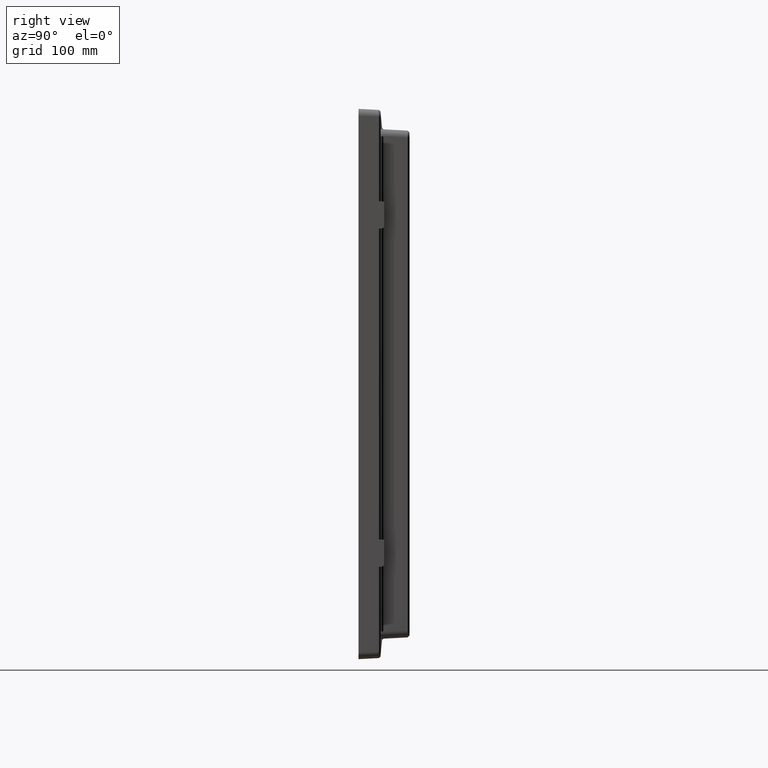
[diagram: clean part render]
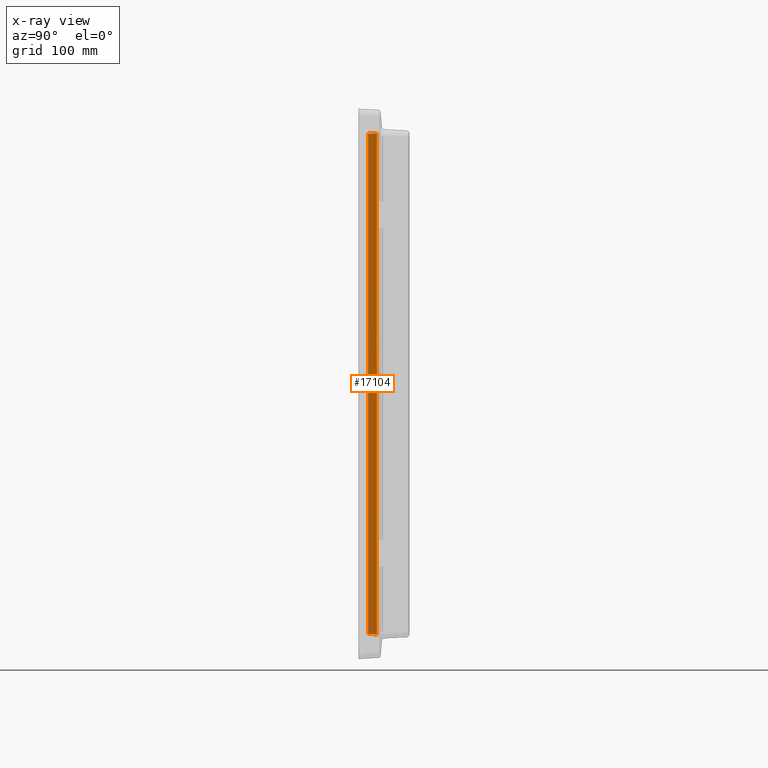
[diagram: x-ray — body ghosted, one internal face saturated and labeled with its STEP entity id]
A machine part, right view, then the same camera in x-ray: the body is ghosted and one INTERNAL B-rep face — a face not visible from any outside direction — is saturated and labeled: STEP entity #17104.
In plain terms, the highlighted planar face has unit normal (-0.9986, -0.0523, 0).
Its self-contained STEP definition (entity closure, byte-faithful):
#168 = VECTOR ( 'NONE', #18140, 1000.000000000000000 ) ;
#290 = CARTESIAN_POINT ( 'NONE',  ( -188.9360347717272100, 6.994240738173410900, 30.05746688267454300 ) ) ;
#407 = B_SPLINE_CURVE_WITH_KNOTS ( 'NONE', 3,
 ( #8299, #22625, #15486, #17966, #5932, #1495, #20226 ),
 .UNSPECIFIED., .F., .F.,
 ( 4, 3, 4 ),
 ( 1.381530824795276200E-015, 0.0001002663549810742900, 0.0002005327818035707900 ),
 .UNSPECIFIED. ) ;
#436 = CARTESIAN_POINT ( 'NONE',  ( -188.9412732507934700, 7.094196820046433600, 31.81801596154923600 ) ) ;
#547 = CARTESIAN_POINT ( 'NONE',  ( -188.9447656382476700, 7.160835542470318100, 40.60455568006824500 ) ) ;
#589 = CARTESIAN_POINT ( 'NONE',  ( -188.9412732516308900, 7.094196835995595600, 34.85100105787397200 ) ) ;
#714 = LINE ( 'NONE', #10707, #5144 ) ;
#754 = CARTESIAN_POINT ( 'NONE',  ( -188.9342884750756800, 6.960919359609834000, 31.81813502846756600 ) ) ;
#858 = CARTESIAN_POINT ( 'NONE',  ( -188.9430194445739900, 7.127516182252463800, 31.81798241460633000 ) ) ;
#946 = CARTESIAN_POINT ( 'NONE',  ( -188.9447656382478700, 7.160835542470376700, 34.39335980948213500 ) ) ;
#974 = DIRECTION ( 'NONE',  ( -0.0000000000000000000, -0.0000000000000000000, 1.000000000000000000 ) ) ;
#982 = CARTESIAN_POINT ( 'NONE',  ( -188.9447656382476500, 7.160835542470413100, 37.98387790205048700 ) ) ;
#1029 = DIRECTION ( 'NONE',  ( -0.0000000000000000000, -0.0000000000000000000, 1.000000000000000000 ) ) ;
#1033 = VECTOR ( 'NONE', #20879, 999.9999999999998900 ) ;
#1052 = CARTESIAN_POINT ( 'NONE',  ( -188.9412734063401200, 7.094199788097673000, 34.39768193111741800 ) ) ;
#1069 = VERTEX_POINT ( 'NONE', #3875 ) ;
#1110 = CARTESIAN_POINT ( 'NONE',  ( -188.9395271882688100, 7.060879962393640200, 40.61045335710176800 ) ) ;
#1124 = CARTESIAN_POINT ( 'NONE',  ( -188.9447656382476500, 7.160835542470518800, 30.06749384362204900 ) ) ;
#1332 = CARTESIAN_POINT ( 'NONE',  ( -188.9447656382476700, 7.160835542470265700, 32.60311402832401500 ) ) ;
#1404 = CARTESIAN_POINT ( 'NONE',  ( -188.9395270562787600, 7.060877443803098800, 38.87541461778662500 ) ) ;
#1489 = ORIENTED_EDGE ( 'NONE', *, *, #17192, .T. ) ;
#1495 = CARTESIAN_POINT ( 'NONE',  ( -188.9360347536244800, 6.994240339571170800, 31.38357291097685600 ) ) ;
#1559 = CARTESIAN_POINT ( 'NONE',  ( -188.9342884750756800, 6.960919359609834000, 31.81813502846756600 ) ) ;
#1705 = CARTESIAN_POINT ( 'NONE',  ( -188.9412733944194800, 7.094199560638514900, 37.51600469653773500 ) ) ;
#1708 = CARTESIAN_POINT ( 'NONE',  ( -188.9447656382476500, 7.160835542470413100, 204.9999999999998600 ) ) ;
#1756 = CARTESIAN_POINT ( 'NONE',  ( -188.9342884750609500, 6.960919359611182200, 41.04890425922975800 ) ) ;
#1820 = CARTESIAN_POINT ( 'NONE',  ( -188.9342884750612400, 6.960919359611346600, 29.64475626176432900 ) ) ;
#2027 = VERTEX_POINT ( 'NONE', #15271 ) ;
#2085 = VERTEX_POINT ( 'NONE', #10906 ) ;
#2118 = VECTOR ( 'NONE', #8249, 1000.000000000000000 ) ;
#2233 = VECTOR ( 'NONE', #974, 1000.000000000000000 ) ;
#2295 = VERTEX_POINT ( 'NONE', #14212 ) ;
#2356 = ORIENTED_EDGE ( 'NONE', *, *, #6102, .F. ) ;
#2473 = B_SPLINE_CURVE_WITH_KNOTS ( 'NONE', 3,
 ( #30123, #6228, #22814, #8589, #20617, #6332, #27587 ),
 .UNSPECIFIED., .F., .F.,
 ( 4, 3, 4 ),
 ( 0.0000000000000000000, 0.0001003025077287998700, 0.0002006050907348608600 ),
 .UNSPECIFIED. ) ;
#2476 = CARTESIAN_POINT ( 'NONE',  ( -188.9342884750619800, 6.960919359624879700, 204.9999999999992600 ) ) ;
#2489 = EDGE_CURVE ( 'NONE', #29928, #13372, #5824, .T. ) ;
#2545 = ORIENTED_EDGE ( 'NONE', *, *, #5420, .F. ) ;
#2663 = EDGE_CURVE ( 'NONE', #19506, #17422, #20660, .T. ) ;
#2674 = VERTEX_POINT ( 'NONE', #1559 ) ;
#2727 = CARTESIAN_POINT ( 'NONE',  ( -188.9447656382630500, 7.160835542468878300, 41.04871591058356000 ) ) ;
#2815 = CARTESIAN_POINT ( 'NONE',  ( -188.9342884750619800, 6.960919359624879700, 204.9999999999992600 ) ) ;
#2822 = CARTESIAN_POINT ( 'NONE',  ( -188.9360347717271800, 6.994240738172631900, 39.28823611344381600 ) ) ;
#2874 = CARTESIAN_POINT ( 'NONE',  ( -188.9447656382478700, 7.160835542470376700, 34.39335980948213500 ) ) ;
#2939 = ORIENTED_EDGE ( 'NONE', *, *, #16165, .F. ) ;
#2954 = CARTESIAN_POINT ( 'NONE',  ( -188.9395270576718200, 7.060877470405913800, 37.98422099609011600 ) ) ;
#3048 = B_SPLINE_CURVE_WITH_KNOTS ( 'NONE', 3,
 ( #17018, #2822, #24278, #19385, #5178, #5073, #12128 ),
 .UNSPECIFIED., .F., .F.,
 ( 4, 3, 4 ),
 ( 5.177061131343927000E-013, 0.0001002746366838406300, 0.0002005493798680574000 ),
 .UNSPECIFIED. ) ;
#3081 = CARTESIAN_POINT ( 'NONE',  ( -188.9412732509200600, 7.094196822429702300, 32.60304927673364300 ) ) ;
#3139 = CARTESIAN_POINT ( 'NONE',  ( -188.9377808630565000, 7.027558092271134700, 31.81807872828775500 ) ) ;
#3148 = VERTEX_POINT ( 'NONE', #19202 ) ;
#3339 = LINE ( 'NONE', #13987, #25243 ) ;
#3440 = VERTEX_POINT ( 'NONE', #21391 ) ;
#3469 = LINE ( 'NONE', #17495, #17916 ) ;
#3498 = LINE ( 'NONE', #17349, #21625 ) ;
#3694 = VECTOR ( 'NONE', #12233, 1000.000000000000000 ) ;
#3816 = CARTESIAN_POINT ( 'NONE',  ( -188.9430194446531200, 7.127516183810509000, 32.60308035395426900 ) ) ;
#3848 = CARTESIAN_POINT ( 'NONE',  ( -188.9447656382476500, 7.160835542470413100, 37.51163128457957200 ) ) ;
#3875 = CARTESIAN_POINT ( 'NONE',  ( -188.5694821496557000, 3.469446951953614200E-015, 205.6014697793929700 ) ) ;
#4085 = CARTESIAN_POINT ( 'NONE',  ( -188.9447656382476500, 7.160835542470413100, 35.80509347349131100 ) ) ;
#4205 = CARTESIAN_POINT ( 'NONE',  ( -188.9360347667124800, 6.994240576081218700, 33.06022826949418900 ) ) ;
#4364 = ORIENTED_EDGE ( 'NONE', *, *, #13872, .F. ) ;
#4510 = EDGE_CURVE ( 'NONE', #3148, #28641, #3048, .T. ) ;
#4515 = VECTOR ( 'NONE', #10260, 1000.000000000000000 ) ;
#4647 = EDGE_CURVE ( 'NONE', #25486, #9282, #21879, .T. ) ;
#4677 = VERTEX_POINT ( 'NONE', #15027 ) ;
#4747 = ORIENTED_EDGE ( 'NONE', *, *, #13457, .F. ) ;
#4935 = LINE ( 'NONE', #2476, #10503 ) ;
#4956 = ORIENTED_EDGE ( 'NONE', *, *, #16575, .F. ) ;
#4982 = B_SPLINE_CURVE_WITH_KNOTS ( 'NONE', 3,
 ( #13405, #10815, #17973, #1404, #29749, #15590, #22732 ),
 .UNSPECIFIED., .F., .F.,
 ( 4, 3, 4 ),
 ( 2.584737979205442600E-016, 0.0001000953200403739500, 0.0002001906427191931500 ),
 .UNSPECIFIED. ) ;
#5046 = CARTESIAN_POINT ( 'NONE',  ( -188.5694821496557000, 3.469446951953614200E-015, 204.9999999999998600 ) ) ;
#5073 = CARTESIAN_POINT ( 'NONE',  ( -188.9430195530014800, 7.127518251219942900, 39.29622980526816200 ) ) ;
#5144 = VECTOR ( 'NONE', #15795, 1000.000000000000000 ) ;
#5178 = CARTESIAN_POINT ( 'NONE',  ( -188.9412734113206200, 7.094199883130880100, 39.29421415656409500 ) ) ;
#5275 = EDGE_CURVE ( 'NONE', #11328, #19753, #15186, .T. ) ;
#5330 = CARTESIAN_POINT ( 'NONE',  ( -188.9342884750597300, 6.960919359611380300, 34.85140125945006400 ) ) ;
#5360 = ORIENTED_EDGE ( 'NONE', *, *, #29434, .F. ) ;
#5420 = EDGE_CURVE ( 'NONE', #29928, #5847, #8133, .T. ) ;
#5448 = ORIENTED_EDGE ( 'NONE', *, *, #26089, .T. ) ;
#5510 = CARTESIAN_POINT ( 'NONE',  ( -188.9360346744356600, 6.994238736032507100, 37.98444362499330400 ) ) ;
#5538 = CARTESIAN_POINT ( 'NONE',  ( -188.9360346686290800, 6.994238717695314000, 29.64471650696434000 ) ) ;
#5661 = DIRECTION ( 'NONE',  ( -2.968150435918780200E-015, 5.663568417750624300E-014, -1.000000000000000000 ) ) ;
#5715 = CARTESIAN_POINT ( 'NONE',  ( -188.9447656382476500, 7.160835542470413100, 204.9999999999998600 ) ) ;
#5809 = EDGE_CURVE ( 'NONE', #25299, #25733, #30158, .T. ) ;
#5824 = LINE ( 'NONE', #6198, #2118 ) ;
#5847 = VERTEX_POINT ( 'NONE', #23552 ) ;
#5849 = CARTESIAN_POINT ( 'NONE',  ( -188.9447656382477000, 7.160835542470541000, 29.64455123952229700 ) ) ;
#5892 = CARTESIAN_POINT ( 'NONE',  ( -188.9377810171274300, 7.027561032163786700, 34.40195775549126000 ) ) ;
#5932 = CARTESIAN_POINT ( 'NONE',  ( -188.9377809926098700, 7.027560564342308200, 31.38163557352960400 ) ) ;
#5995 = LINE ( 'NONE', #12340, #4515 ) ;
#6028 = EDGE_CURVE ( 'NONE', #3148, #30355, #22951, .T. ) ;
#6102 = EDGE_CURVE ( 'NONE', #8730, #13372, #19547, .T. ) ;
#6103 = CARTESIAN_POINT ( 'NONE',  ( -188.9447656382476500, 7.160835542470413100, 204.9999999999998600 ) ) ;
#6124 = DIRECTION ( 'NONE',  ( -0.0000000000000000000, -0.0000000000000000000, 1.000000000000000000 ) ) ;
#6147 = CARTESIAN_POINT ( 'NONE',  ( -188.9342884790282500, 6.960919359054821100, 37.52462566454044400 ) ) ;
#6198 = CARTESIAN_POINT ( 'NONE',  ( -188.9342884750619500, 6.960919359624384100, 204.9999999999993200 ) ) ;
#6204 = CARTESIAN_POINT ( 'NONE',  ( -188.9447656382476500, 7.160835542470413100, 204.9999999999998600 ) ) ;
#6228 = CARTESIAN_POINT ( 'NONE',  ( -188.9360347637601500, 6.994240544612634600, 36.26343899772098900 ) ) ;
#6248 = CARTESIAN_POINT ( 'NONE',  ( -188.9430194451422000, 7.127516193142268400, 35.80496268559208800 ) ) ;
#6254 = CARTESIAN_POINT ( 'NONE',  ( -188.9447656382439200, 7.160835542470652900, 33.07097863512728300 ) ) ;
#6332 = CARTESIAN_POINT ( 'NONE',  ( -188.9430195430515800, 7.127518061363772100, 36.27203144736195400 ) ) ;
#6449 = CARTESIAN_POINT ( 'NONE',  ( -188.9342884750610400, 6.960919359611342100, 30.05550251453547600 ) ) ;
#6479 = CARTESIAN_POINT ( 'NONE',  ( -188.9342884750746000, 6.960919359609813600, 33.05811326122257300 ) ) ;
#6566 = EDGE_CURVE ( 'NONE', #21959, #21594, #714, .T. ) ;
#6593 = CARTESIAN_POINT ( 'NONE',  ( -188.9447656382476500, 7.160835542470413100, 27.77873147750229400 ) ) ;
#6645 = VERTEX_POINT ( 'NONE', #30342 ) ;
#6762 = CARTESIAN_POINT ( 'NONE',  ( -188.9430195413220600, 7.127518028363833300, 37.51382522917320700 ) ) ;
#6799 = ORIENTED_EDGE ( 'NONE', *, *, #22896, .F. ) ;
#6862 = LINE ( 'NONE', #6103, #168 ) ;
#6876 = ORIENTED_EDGE ( 'NONE', *, *, #22719, .T. ) ;
#7557 = EDGE_CURVE ( 'NONE', #18018, #2295, #21609, .T. ) ;
#7671 = EDGE_CURVE ( 'NONE', #19506, #9282, #13617, .T. ) ;
#7714 = CARTESIAN_POINT ( 'NONE',  ( -188.9377808638931000, 7.027558108203762400, 34.85120471853019100 ) ) ;
#7867 = CARTESIAN_POINT ( 'NONE',  ( -188.4075754728169200, -3.089363431416518600, 27.59875002051060000 ) ) ;
#7922 = CARTESIAN_POINT ( 'NONE',  ( -188.9342884750612400, 6.960919359611346600, 29.64475626176432900 ) ) ;
#7930 = ORIENTED_EDGE ( 'NONE', *, *, #13005, .T. ) ;
#7963 = CARTESIAN_POINT ( 'NONE',  ( -188.9395272124730800, 7.060880424237757900, 34.39981984239916800 ) ) ;
#8092 = CARTESIAN_POINT ( 'NONE',  ( -188.9342884750607300, 6.960919359601414900, 205.0000000000002300 ) ) ;
#8133 = B_SPLINE_CURVE_WITH_KNOTS ( 'NONE', 3,
 ( #5330, #9781, #7714, #28833, #589, #24334, #26687 ),
 .UNSPECIFIED., .F., .F.,
 ( 4, 3, 4 ),
 ( 2.899460351569549800E-014, 0.0001000957339395615100, 0.0002001914699060664300 ),
 .UNSPECIFIED. ) ;
#8141 = VERTEX_POINT ( 'NONE', #8491 ) ;
#8171 = DIRECTION ( 'NONE',  ( 0.05232800038592330000, -0.9984777279592954600, 0.01743580066570571400 ) ) ;
#8205 = LINE ( 'NONE', #27902, #19345 ) ;
#8242 = ORIENTED_EDGE ( 'NONE', *, *, #2663, .F. ) ;
#8249 = DIRECTION ( 'NONE',  ( 4.051147234728850400E-015, -7.730049412797324000E-014, -1.000000000000000000 ) ) ;
#8299 = CARTESIAN_POINT ( 'NONE',  ( -188.9447656382476500, 7.160835542470445100, 31.37378644929903600 ) ) ;
#8380 = ORIENTED_EDGE ( 'NONE', *, *, #14520, .F. ) ;
#8389 = B_SPLINE_CURVE_WITH_KNOTS ( 'NONE', 3,
 ( #6479, #4205, #23167, #11146, #27638, #29889, #8932 ),
 .UNSPECIFIED., .F., .F.,
 ( 4, 3, 4 ),
 ( 1.400288425469382700E-013, 0.0001003017269961700100, 0.0002006035318297939500 ),
 .UNSPECIFIED. ) ;
#8459 = DIRECTION ( 'NONE',  ( -0.0000000000000000000, -0.0000000000000000000, 1.000000000000000000 ) ) ;
#8482 = LINE ( 'NONE', #10841, #20356 ) ;
#8491 = CARTESIAN_POINT ( 'NONE',  ( -188.9447656382476500, 7.160835542470177700, 38.87532047029196000 ) ) ;
#8523 = ORIENTED_EDGE ( 'NONE', *, *, #25556, .F. ) ;
#8589 = CARTESIAN_POINT ( 'NONE',  ( -188.9395272012128000, 7.060880209377268500, 36.26772073299532900 ) ) ;
#8720 = CARTESIAN_POINT ( 'NONE',  ( -188.9360346696670900, 6.994238737568108100, 35.80445439081666600 ) ) ;
#8730 = VERTEX_POINT ( 'NONE', #2874 ) ;
#8776 = VECTOR ( 'NONE', #21377, 1000.000000000000000 ) ;
#8932 = CARTESIAN_POINT ( 'NONE',  ( -188.9447656382439200, 7.160835542470652900, 33.07097863512728300 ) ) ;
#8934 = CARTESIAN_POINT ( 'NONE',  ( -188.9430195340163700, 7.127517888963093500, 40.60653635627109300 ) ) ;
#8953 = VERTEX_POINT ( 'NONE', #1820 ) ;
#9048 = EDGE_LOOP ( 'NONE', ( #19631, #11513, #10750, #6876, #30400, #4956, #18569, #10605, #8380, #18722, #8523, #13864, #28295, #5360, #10155, #21247, #18510, #10942, #2545, #12563, #2356, #29956, #26067, #7930, #2939, #26577, #27270, #1489, #21845, #4747, #6799, #11402, #4364, #15916, #8242, #28493, #30681, #14207, #5448, #30115 ) ) ;
#9185 = LINE ( 'NONE', #6204, #23684 ) ;
#9282 = VERTEX_POINT ( 'NONE', #9956 ) ;
#9361 = LINE ( 'NONE', #15564, #14553 ) ;
#9650 = CARTESIAN_POINT ( 'NONE',  ( -188.9430194445739600, 7.127516182252819900, 41.04875164537531900 ) ) ;
#9781 = CARTESIAN_POINT ( 'NONE',  ( -188.9360346693262000, 6.994238737338327500, 34.85130417326128300 ) ) ;
#9805 = LINE ( 'NONE', #19373, #27656 ) ;
#9836 = VERTEX_POINT ( 'NONE', #15004 ) ;
#9903 = CARTESIAN_POINT ( 'NONE',  ( -188.9412734113206500, 7.094199883132636900, 30.06344492579490800 ) ) ;
#9908 = DIRECTION ( 'NONE',  ( 0.05233595624294391800, -0.9986295347545739400, 0.0000000000000000000 ) ) ;
#9956 = CARTESIAN_POINT ( 'NONE',  ( -188.9342884750612400, 6.960919359611215100, 27.42324813151358900 ) ) ;
#9988 = CARTESIAN_POINT ( 'NONE',  ( -188.9342884750612400, 6.960919359611057900, 32.60294320813397900 ) ) ;
#10141 = CARTESIAN_POINT ( 'NONE',  ( -188.9430195492129800, 7.127518178931047100, 34.39552875517068000 ) ) ;
#10155 = ORIENTED_EDGE ( 'NONE', *, *, #27443, .F. ) ;
#10260 = DIRECTION ( 'NONE',  ( 4.991852034620720100E-015, -9.525021099751200000E-014, 1.000000000000000000 ) ) ;
#10503 = VECTOR ( 'NONE', #21517, 1000.000000000000000 ) ;
#10510 = CARTESIAN_POINT ( 'NONE',  ( -188.9412732501265300, 7.094196807296618200, 29.64461122097074500 ) ) ;
#10605 = ORIENTED_EDGE ( 'NONE', *, *, #6028, .T. ) ;
#10697 = CARTESIAN_POINT ( 'NONE',  ( -188.9447656382476500, 7.160835542470518800, 30.06749384362204900 ) ) ;
#10707 = CARTESIAN_POINT ( 'NONE',  ( -188.9447656382476500, 7.160835542470413100, 204.9999999999998600 ) ) ;
#10750 = ORIENTED_EDGE ( 'NONE', *, *, #24526, .F. ) ;
#10815 = CARTESIAN_POINT ( 'NONE',  ( -188.9430194441260700, 7.127516173753135400, 38.87534907354884000 ) ) ;
#10841 = CARTESIAN_POINT ( 'NONE',  ( -188.9342884750619500, 6.960919359624384100, 204.9999999999993200 ) ) ;
#10906 = CARTESIAN_POINT ( 'NONE',  ( -188.9447656382477000, 7.160835542470541000, 29.64455123952229700 ) ) ;
#10942 = ORIENTED_EDGE ( 'NONE', *, *, #26234, .F. ) ;
#11146 = CARTESIAN_POINT ( 'NONE',  ( -188.9395272032058100, 7.060880247408667800, 33.06450177030969700 ) ) ;
#11301 = VERTEX_POINT ( 'NONE', #24982 ) ;
#11328 = VERTEX_POINT ( 'NONE', #13564 ) ;
#11402 = ORIENTED_EDGE ( 'NONE', *, *, #24709, .T. ) ;
#11513 = ORIENTED_EDGE ( 'NONE', *, *, #6566, .F. ) ;
#11535 = VECTOR ( 'NONE', #20109, 1000.000000000000000 ) ;
#11721 = CARTESIAN_POINT ( 'NONE',  ( -188.9447656382476500, 7.160835542470413100, 37.98387790205048700 ) ) ;
#11886 = VERTEX_POINT ( 'NONE', #11721 ) ;
#12128 = CARTESIAN_POINT ( 'NONE',  ( -188.9447656382476200, 7.160835542470207000, 39.29826307439130100 ) ) ;
#12152 = VECTOR ( 'NONE', #20357, 1000.000000000000100 ) ;
#12233 = DIRECTION ( 'NONE',  ( 4.387887352962534900E-015, -8.372587835223193300E-014, -1.000000000000000000 ) ) ;
#12250 = DIRECTION ( 'NONE',  ( -0.0000000000000000000, -0.0000000000000000000, 1.000000000000000000 ) ) ;
#12340 = CARTESIAN_POINT ( 'NONE',  ( -188.9342884750605300, 6.960919359597634900, 205.0000000000005100 ) ) ;
#12405 = CARTESIAN_POINT ( 'NONE',  ( -188.9377810223133200, 7.027561131116818200, 30.05944807782460500 ) ) ;
#12557 = VERTEX_POINT ( 'NONE', #29916 ) ;
#12563 = ORIENTED_EDGE ( 'NONE', *, *, #2489, .T. ) ;
#12701 = CARTESIAN_POINT ( 'NONE',  ( -188.9360346691689500, 6.994238727987107200, 32.60296646359263000 ) ) ;
#12845 = CARTESIAN_POINT ( 'NONE',  ( -188.9342884750612400, 6.960919359611197300, 34.40618826652722400 ) ) ;
#12921 = CARTESIAN_POINT ( 'NONE',  ( -188.9447656382476500, 7.160835542470413100, 204.9999999999998600 ) ) ;
#13005 = EDGE_CURVE ( 'NONE', #9836, #6645, #8482, .T. ) ;
#13012 = LINE ( 'NONE', #8092, #11535 ) ;
#13372 = VERTEX_POINT ( 'NONE', #12845 ) ;
#13405 = CARTESIAN_POINT ( 'NONE',  ( -188.9447656382476500, 7.160835542470177700, 38.87532047029196000 ) ) ;
#13406 = CARTESIAN_POINT ( 'NONE',  ( -188.9447656382476500, 7.160835542470413100, 37.51163128457957200 ) ) ;
#13457 = EDGE_CURVE ( 'NONE', #28580, #29930, #9185, .T. ) ;
#13564 = CARTESIAN_POINT ( 'NONE',  ( -188.9447656382474500, 7.160835542470435300, 31.81794667980729200 ) ) ;
#13608 = CARTESIAN_POINT ( 'NONE',  ( -188.9412732516543400, 7.094196836478817000, 35.80483375818523200 ) ) ;
#13609 = CARTESIAN_POINT ( 'NONE',  ( -188.9360347624737000, 6.994240508424818300, 37.52248742456068700 ) ) ;
#13617 = LINE ( 'NONE', #16745, #8776 ) ;
#13713 = DIRECTION ( 'NONE',  ( 0.0000000000000000000, 0.0000000000000000000, -1.000000000000000000 ) ) ;
#13864 = ORIENTED_EDGE ( 'NONE', *, *, #23971, .F. ) ;
#13872 = EDGE_CURVE ( 'NONE', #2085, #8953, #27047, .T. ) ;
#13987 = CARTESIAN_POINT ( 'NONE',  ( -188.9447656382476500, 7.160835542470413100, 204.9999999999998600 ) ) ;
#14124 = CARTESIAN_POINT ( 'NONE',  ( -188.9447656382476500, 7.160835542470445100, 31.37378644929903600 ) ) ;
#14197 = FACE_OUTER_BOUND ( 'NONE', #9048, .T. ) ;
#14207 = ORIENTED_EDGE ( 'NONE', *, *, #24733, .F. ) ;
#14212 = CARTESIAN_POINT ( 'NONE',  ( -188.9342884750612400, 6.960919359611116500, 40.61626629851947000 ) ) ;
#14244 = CARTESIAN_POINT ( 'NONE',  ( -188.9360346738845100, 6.994238726314519800, 41.04887718326099100 ) ) ;
#14463 = EDGE_CURVE ( 'NONE', #2027, #16730, #30242, .T. ) ;
#14520 = EDGE_CURVE ( 'NONE', #8141, #30355, #4982, .T. ) ;
#14534 = VERTEX_POINT ( 'NONE', #6449 ) ;
#14553 = VECTOR ( 'NONE', #6124, 1000.000000000000000 ) ;
#15004 = CARTESIAN_POINT ( 'NONE',  ( -188.9342884750746000, 6.960919359609813600, 33.05811326122257300 ) ) ;
#15027 = CARTESIAN_POINT ( 'NONE',  ( -188.5694821496557000, 3.469446951953614200E-015, -205.6014697793929700 ) ) ;
#15105 = CARTESIAN_POINT ( 'NONE',  ( -188.9430195530015300, 7.127518251222026500, 30.06546057449899900 ) ) ;
#15186 = LINE ( 'NONE', #17402, #21848 ) ;
#15192 = CARTESIAN_POINT ( 'NONE',  ( -188.9430194441262100, 7.127516173755191500, 29.64457984277913400 ) ) ;
#15271 = CARTESIAN_POINT ( 'NONE',  ( -188.9447656382476500, 7.160835542470413100, 35.80509347349131100 ) ) ;
#15486 = CARTESIAN_POINT ( 'NONE',  ( -188.9412733826471000, 7.094199336009176600, 31.37773268056675500 ) ) ;
#15564 = CARTESIAN_POINT ( 'NONE',  ( -188.9447656382476500, 7.160835542470413100, 204.9999999999998600 ) ) ;
#15590 = CARTESIAN_POINT ( 'NONE',  ( -188.9360346686291600, 6.994238717694908100, 38.87548573773396800 ) ) ;
#15795 = DIRECTION ( 'NONE',  ( -0.0000000000000000000, -0.0000000000000000000, 1.000000000000000000 ) ) ;
#15877 = VERTEX_POINT ( 'NONE', #1756 ) ;
#15916 = ORIENTED_EDGE ( 'NONE', *, *, #27319, .F. ) ;
#16165 = EDGE_CURVE ( 'NONE', #19753, #6645, #19419, .T. ) ;
#16212 = EDGE_CURVE ( 'NONE', #16730, #30300, #29794, .T. ) ;
#16256 = EDGE_CURVE ( 'NONE', #9836, #23749, #8389, .T. ) ;
#16495 = VECTOR ( 'NONE', #18509, 1000.000000000000000 ) ;
#16569 = CARTESIAN_POINT ( 'NONE',  ( -188.9342884750612400, 6.960919359610970900, 38.87552549253383900 ) ) ;
#16575 = EDGE_CURVE ( 'NONE', #28641, #18018, #3498, .T. ) ;
#16584 = DIRECTION ( 'NONE',  ( -0.9986295347545739400, -0.05233595624294391800, 0.0000000000000000000 ) ) ;
#16730 = VERTEX_POINT ( 'NONE', #27294 ) ;
#16745 = CARTESIAN_POINT ( 'NONE',  ( -188.9342884750612400, 6.960919359611215100, 204.9999999999998600 ) ) ;
#16884 = CARTESIAN_POINT ( 'NONE',  ( -188.9395272158932100, 7.060880489497857400, 30.06144650075253500 ) ) ;
#16945 = B_SPLINE_CURVE_WITH_KNOTS ( 'NONE', 3,
 ( #26442, #14244, #26158, #28317, #18994, #9650, #2727 ),
 .UNSPECIFIED., .F., .F.,
 ( 4, 3, 4 ),
 ( 4.233043727096315200E-013, 0.0001000953124016318900, 0.0002001906264832172100 ),
 .UNSPECIFIED. ) ;
#17005 = DIRECTION ( 'NONE',  ( 0.05226687669746440900, -0.9973114185049534200, 0.05136251668220350600 ) ) ;
#17018 = CARTESIAN_POINT ( 'NONE',  ( -188.9342884750761000, 6.960919359609567500, 39.28627174529226800 ) ) ;
#17104 = ADVANCED_FACE ( 'NONE', ( #14197 ), #21321, .T. ) ;
#17192 = EDGE_CURVE ( 'NONE', #2674, #3440, #3469, .T. ) ;
#17329 = CARTESIAN_POINT ( 'NONE',  ( -188.9360346738844500, 6.994238726314486100, 31.81810795249197800 ) ) ;
#17333 = EDGE_CURVE ( 'NONE', #23749, #8730, #21962, .T. ) ;
#17349 = CARTESIAN_POINT ( 'NONE',  ( -188.9447656382476500, 7.160835542470413100, 204.9999999999998600 ) ) ;
#17369 = LINE ( 'NONE', #20053, #12152 ) ;
#17402 = CARTESIAN_POINT ( 'NONE',  ( -188.9447656382476500, 7.160835542470413100, 204.9999999999998600 ) ) ;
#17422 = VERTEX_POINT ( 'NONE', #6593 ) ;
#17495 = CARTESIAN_POINT ( 'NONE',  ( -188.9342884750607300, 6.960919359601414900, 205.0000000000002300 ) ) ;
#17515 = CARTESIAN_POINT ( 'NONE',  ( -188.9360347704206000, 6.994240660061890000, 34.40408040420749800 ) ) ;
#17787 = CARTESIAN_POINT ( 'NONE',  ( -188.9360347536244800, 6.994240339570717800, 40.61434214174598600 ) ) ;
#17895 = CARTESIAN_POINT ( 'NONE',  ( -188.9377809926098500, 7.027560564341710500, 40.61240480429879100 ) ) ;
#17913 = CARTESIAN_POINT ( 'NONE',  ( -188.9447656382630500, 7.160835542468878300, 41.04871591058356000 ) ) ;
#17916 = VECTOR ( 'NONE', #5661, 1000.000000000000000 ) ;
#17966 = CARTESIAN_POINT ( 'NONE',  ( -188.9395271882688400, 7.060879962394384500, 31.37968412633256000 ) ) ;
#17973 = CARTESIAN_POINT ( 'NONE',  ( -188.9412732501265000, 7.094196807294970600, 38.87538045174039800 ) ) ;
#18018 = VERTEX_POINT ( 'NONE', #547 ) ;
#18140 = DIRECTION ( 'NONE',  ( -0.0000000000000000000, -0.0000000000000000000, 1.000000000000000000 ) ) ;
#18262 = VERTEX_POINT ( 'NONE', #22822 ) ;
#18270 = CARTESIAN_POINT ( 'NONE',  ( -188.9447656382476200, 7.160835542470207000, 39.29826307439130100 ) ) ;
#18286 = CARTESIAN_POINT ( 'NONE',  ( -188.9395272004001100, 7.060880193871575700, 37.51817024457530900 ) ) ;
#18431 = CARTESIAN_POINT ( 'NONE',  ( -188.7312894829829600, 3.087467844294296400, 27.70760076999148700 ) ) ;
#18509 = DIRECTION ( 'NONE',  ( 4.991852034620720100E-015, -9.525021099751200000E-014, 1.000000000000000000 ) ) ;
#18510 = ORIENTED_EDGE ( 'NONE', *, *, #14463, .F. ) ;
#18569 = ORIENTED_EDGE ( 'NONE', *, *, #4510, .F. ) ;
#18722 = ORIENTED_EDGE ( 'NONE', *, *, #23823, .F. ) ;
#18938 = EDGE_CURVE ( 'NONE', #2674, #11328, #24560, .T. ) ;
#18994 = CARTESIAN_POINT ( 'NONE',  ( -188.9412732507934400, 7.094196820046708900, 41.04878519231822100 ) ) ;
#19202 = CARTESIAN_POINT ( 'NONE',  ( -188.9342884750761000, 6.960919359609567500, 39.28627174529226800 ) ) ;
#19345 = VECTOR ( 'NONE', #13713, 1000.000000000000000 ) ;
#19373 = CARTESIAN_POINT ( 'NONE',  ( -187.4671985551683200, -21.03282393505375200, -204.5182587079129600 ) ) ;
#19377 = CARTESIAN_POINT ( 'NONE',  ( -188.9342884750612400, 6.960919359611214200, 27.77524046451664900 ) ) ;
#19385 = CARTESIAN_POINT ( 'NONE',  ( -188.9395272158931500, 7.060880489496425700, 39.29221573152175000 ) ) ;
#19419 = B_SPLINE_CURVE_WITH_KNOTS ( 'NONE', 3,
 ( #1332, #3816, #3081, #24332, #26901, #12701, #9988 ),
 .UNSPECIFIED., .F., .F.,
 ( 4, 3, 4 ),
 ( 1.681275521554140200E-015, 0.0001000953040430555900, 0.0002001906105249726900 ),
 .UNSPECIFIED. ) ;
#19506 = VERTEX_POINT ( 'NONE', #19377 ) ;
#19513 = CARTESIAN_POINT ( 'NONE',  ( -188.9342884750613500, 6.960919359613543000, 37.98455186570903700 ) ) ;
#19547 = B_SPLINE_CURVE_WITH_KNOTS ( 'NONE', 3,
 ( #946, #10141, #1052, #7963, #5892, #17515, #24787 ),
 .UNSPECIFIED., .F., .F.,
 ( 4, 3, 4 ),
 ( 2.538499761273852400E-015, 0.0001003005423280110800, 0.0002006011681793794000 ),
 .UNSPECIFIED. ) ;
#19614 = CARTESIAN_POINT ( 'NONE',  ( -188.9377808638178100, 7.027558106793831500, 37.98433332670786200 ) ) ;
#19631 = ORIENTED_EDGE ( 'NONE', *, *, #30674, .T. ) ;
#19753 = VERTEX_POINT ( 'NONE', #20497 ) ;
#20029 = LINE ( 'NONE', #5715, #2233 ) ;
#20049 = CARTESIAN_POINT ( 'NONE',  ( -188.9395270562787600, 7.060877443804331600, 29.64464538701698300 ) ) ;
#20053 = CARTESIAN_POINT ( 'NONE',  ( -188.5678674689514200, -0.03080994322554829500, 205.5998830370840600 ) ) ;
#20080 = LINE ( 'NONE', #1708, #24937 ) ;
#20109 = DIRECTION ( 'NONE',  ( -2.968150435918780200E-015, 5.663568417750624300E-014, -1.000000000000000000 ) ) ;
#20147 = DIRECTION ( 'NONE',  ( 4.051147234728850400E-015, -7.730049412797324000E-014, -1.000000000000000000 ) ) ;
#20226 = CARTESIAN_POINT ( 'NONE',  ( -188.9342884750612400, 6.960919359611247100, 31.38549706775048500 ) ) ;
#20230 = CARTESIAN_POINT ( 'NONE',  ( -188.9395270577976800, 7.060877472816925700, 35.80470668449216000 ) ) ;
#20249 = CARTESIAN_POINT ( 'NONE',  ( -188.9342884750612400, 6.960919359611116500, 40.61626629851947000 ) ) ;
#20356 = VECTOR ( 'NONE', #20147, 1000.000000000000000 ) ;
#20357 = DIRECTION ( 'NONE',  ( -0.05226687669746440900, 0.9973114185049534200, 0.05136251668220350600 ) ) ;
#20369 = AXIS2_PLACEMENT_3D ( 'NONE', #5046, #16584, #9908 ) ;
#20497 = CARTESIAN_POINT ( 'NONE',  ( -188.9447656382476700, 7.160835542470265700, 32.60311402832401500 ) ) ;
#20617 = CARTESIAN_POINT ( 'NONE',  ( -188.9412733964514400, 7.094199599409267700, 36.26986884641660700 ) ) ;
#20643 = CARTESIAN_POINT ( 'NONE',  ( -188.9342884750613500, 6.960919359613750900, 35.80433101771576800 ) ) ;
#20660 = LINE ( 'NONE', #18431, #1033 ) ;
#20879 = DIRECTION ( 'NONE',  ( -0.05232800038592330000, 0.9984777279592954600, 0.01743580066570571800 ) ) ;
#21086 = B_SPLINE_CURVE_WITH_KNOTS ( 'NONE', 3,
 ( #19513, #5510, #19614, #2954, #26771, #26551, #982 ),
 .UNSPECIFIED., .F., .F.,
 ( 4, 3, 4 ),
 ( 4.409188142897008000E-013, 0.0001000958354167511400, 0.0002001916723270863200 ),
 .UNSPECIFIED. ) ;
#21104 = DIRECTION ( 'NONE',  ( -0.0000000000000000000, -0.0000000000000000000, 1.000000000000000000 ) ) ;
#21247 = ORIENTED_EDGE ( 'NONE', *, *, #16212, .F. ) ;
#21321 = PLANE ( 'NONE',  #20369 ) ;
#21377 = DIRECTION ( 'NONE',  ( 0.0000000000000000000, 0.0000000000000000000, -1.000000000000000000 ) ) ;
#21391 = CARTESIAN_POINT ( 'NONE',  ( -188.9342884750612400, 6.960919359611247100, 31.38549706775048500 ) ) ;
#21517 = DIRECTION ( 'NONE',  ( 4.387887352962534900E-015, -8.372587835223193300E-014, -1.000000000000000000 ) ) ;
#21594 = VERTEX_POINT ( 'NONE', #29540 ) ;
#21609 = B_SPLINE_CURVE_WITH_KNOTS ( 'NONE', 3,
 ( #29563, #8934, #22654, #1110, #17895, #17787, #20249 ),
 .UNSPECIFIED., .F., .F.,
 ( 4, 3, 4 ),
 ( 3.184824273704179700E-016, 0.0001002663549806284500, 0.0002005327818024978000 ),
 .UNSPECIFIED. ) ;
#21625 = VECTOR ( 'NONE', #29427, 1000.000000000000000 ) ;
#21845 = ORIENTED_EDGE ( 'NONE', *, *, #25658, .F. ) ;
#21848 = VECTOR ( 'NONE', #8459, 1000.000000000000000 ) ;
#21879 = LINE ( 'NONE', #7867, #26717 ) ;
#21959 = VERTEX_POINT ( 'NONE', #17913 ) ;
#21962 = LINE ( 'NONE', #12921, #27916 ) ;
#22625 = CARTESIAN_POINT ( 'NONE',  ( -188.9430195340163700, 7.127517888964136200, 31.37576712550186600 ) ) ;
#22654 = CARTESIAN_POINT ( 'NONE',  ( -188.9412733826470400, 7.094199336008284900, 40.60850191133599200 ) ) ;
#22719 = EDGE_CURVE ( 'NONE', #15877, #2295, #4935, .T. ) ;
#22732 = CARTESIAN_POINT ( 'NONE',  ( -188.9342884750612400, 6.960919359610970900, 38.87552549253383900 ) ) ;
#22814 = CARTESIAN_POINT ( 'NONE',  ( -188.9377810072771500, 7.027560844207744900, 36.26557262117694300 ) ) ;
#22822 = CARTESIAN_POINT ( 'NONE',  ( -188.9342884750613500, 6.960919359613543000, 37.98455186570903700 ) ) ;
#22896 = EDGE_CURVE ( 'NONE', #14534, #28580, #24361, .T. ) ;
#22951 = LINE ( 'NONE', #2815, #3694 ) ;
#23167 = CARTESIAN_POINT ( 'NONE',  ( -188.9377810094511000, 7.027560885692013300, 33.06235765904842300 ) ) ;
#23552 = CARTESIAN_POINT ( 'NONE',  ( -188.9447656382458000, 7.160835542470619200, 34.85079026528164500 ) ) ;
#23684 = VECTOR ( 'NONE', #27564, 1000.000000000000000 ) ;
#23749 = VERTEX_POINT ( 'NONE', #6254 ) ;
#23823 = EDGE_CURVE ( 'NONE', #11886, #8141, #20080, .T. ) ;
#23971 = EDGE_CURVE ( 'NONE', #25733, #18262, #5995, .T. ) ;
#24061 = CARTESIAN_POINT ( 'NONE',  ( -188.9342884750597300, 6.960919359611380300, 34.85140125945006400 ) ) ;
#24278 = CARTESIAN_POINT ( 'NONE',  ( -188.9377810223132900, 7.027561131115711600, 39.29021730859384600 ) ) ;
#24332 = CARTESIAN_POINT ( 'NONE',  ( -188.9395270570719300, 7.060877458930394600, 32.60302080414400900 ) ) ;
#24334 = CARTESIAN_POINT ( 'NONE',  ( -188.9430194451427100, 7.127516193074486100, 34.85089685228997100 ) ) ;
#24361 = B_SPLINE_CURVE_WITH_KNOTS ( 'NONE', 3,
 ( #26593, #290, #12405, #16884, #9903, #15105, #1124 ),
 .UNSPECIFIED., .F., .F.,
 ( 4, 3, 4 ),
 ( 5.164345701423901000E-013, 0.0001002746366848236500, 0.0002005493798679203800 ),
 .UNSPECIFIED. ) ;
#24526 = EDGE_CURVE ( 'NONE', #15877, #21959, #16945, .T. ) ;
#24560 = B_SPLINE_CURVE_WITH_KNOTS ( 'NONE', 3,
 ( #754, #17329, #3139, #28890, #436, #858, #26532 ),
 .UNSPECIFIED., .F., .F.,
 ( 4, 3, 4 ),
 ( 4.226818742237701000E-013, 0.0001000953124019853100, 0.0002001906264839232200 ),
 .UNSPECIFIED. ) ;
#24630 = CARTESIAN_POINT ( 'NONE',  ( -188.9377808623823100, 7.027558079383089400, 29.64467955306417200 ) ) ;
#24709 = EDGE_CURVE ( 'NONE', #14534, #8953, #13012, .T. ) ;
#24733 = EDGE_CURVE ( 'NONE', #11301, #25486, #20029, .T. ) ;
#24787 = CARTESIAN_POINT ( 'NONE',  ( -188.9342884750612400, 6.960919359611197300, 34.40618826652722400 ) ) ;
#24937 = VECTOR ( 'NONE', #12250, 1000.000000000000000 ) ;
#24982 = CARTESIAN_POINT ( 'NONE',  ( -188.9447656382476500, 7.160835542470413100, -205.9702598365248300 ) ) ;
#25243 = VECTOR ( 'NONE', #21104, 1000.000000000000000 ) ;
#25299 = VERTEX_POINT ( 'NONE', #3848 ) ;
#25335 = CARTESIAN_POINT ( 'NONE',  ( -188.9377808639194700, 7.027558108743162000, 35.80457961079752500 ) ) ;
#25486 = VERTEX_POINT ( 'NONE', #26096 ) ;
#25556 = EDGE_CURVE ( 'NONE', #18262, #11886, #21086, .T. ) ;
#25558 = CARTESIAN_POINT ( 'NONE',  ( -188.9342884750605300, 6.960919359597634900, 205.0000000000005100 ) ) ;
#25658 = EDGE_CURVE ( 'NONE', #29930, #3440, #407, .T. ) ;
#25733 = VERTEX_POINT ( 'NONE', #6147 ) ;
#26067 = ORIENTED_EDGE ( 'NONE', *, *, #16256, .F. ) ;
#26089 = EDGE_CURVE ( 'NONE', #11301, #4677, #9805, .T. ) ;
#26096 = CARTESIAN_POINT ( 'NONE',  ( -188.9447656382476500, 7.160835542470416600, 27.41975711852793700 ) ) ;
#26158 = CARTESIAN_POINT ( 'NONE',  ( -188.9377808630564700, 7.027558092271252800, 41.04884795905674400 ) ) ;
#26234 = EDGE_CURVE ( 'NONE', #5847, #2027, #6862, .T. ) ;
#26442 = CARTESIAN_POINT ( 'NONE',  ( -188.9342884750609500, 6.960919359611182200, 41.04890425922975800 ) ) ;
#26532 = CARTESIAN_POINT ( 'NONE',  ( -188.9447656382474500, 7.160835542470435300, 31.81794667980729200 ) ) ;
#26551 = CARTESIAN_POINT ( 'NONE',  ( -188.9430194450762600, 7.127516191836494200, 37.98399429741655100 ) ) ;
#26577 = ORIENTED_EDGE ( 'NONE', *, *, #5275, .F. ) ;
#26593 = CARTESIAN_POINT ( 'NONE',  ( -188.9342884750610400, 6.960919359611342100, 30.05550251453547600 ) ) ;
#26687 = CARTESIAN_POINT ( 'NONE',  ( -188.9447656382458000, 7.160835542470619200, 34.85079026528164500 ) ) ;
#26717 = VECTOR ( 'NONE', #8171, 999.9999999999998900 ) ;
#26771 = CARTESIAN_POINT ( 'NONE',  ( -188.9412732515519300, 7.094196834515477300, 37.98410866547067900 ) ) ;
#26901 = CARTESIAN_POINT ( 'NONE',  ( -188.9377808631812700, 7.027558094619647200, 32.60299233155368600 ) ) ;
#27047 = B_SPLINE_CURVE_WITH_KNOTS ( 'NONE', 3,
 ( #5849, #15192, #10510, #20049, #24630, #5538, #7922 ),
 .UNSPECIFIED., .F., .F.,
 ( 4, 3, 4 ),
 ( 2.367902151570234000E-015, 0.0001000953200416169800, 0.0002001906427212920900 ),
 .UNSPECIFIED. ) ;
#27270 = ORIENTED_EDGE ( 'NONE', *, *, #18938, .F. ) ;
#27294 = CARTESIAN_POINT ( 'NONE',  ( -188.9342884750613500, 6.960919359613750900, 35.80433101771576800 ) ) ;
#27319 = EDGE_CURVE ( 'NONE', #17422, #2085, #9361, .T. ) ;
#27443 = EDGE_CURVE ( 'NONE', #30300, #12557, #2473, .T. ) ;
#27564 = DIRECTION ( 'NONE',  ( -0.0000000000000000000, -0.0000000000000000000, 1.000000000000000000 ) ) ;
#27587 = CARTESIAN_POINT ( 'NONE',  ( -188.9447656382479300, 7.160835542472891100, 36.27420904820103000 ) ) ;
#27638 = CARTESIAN_POINT ( 'NONE',  ( -188.9412733983102400, 7.094199634879587700, 33.06664588322826900 ) ) ;
#27656 = VECTOR ( 'NONE', #17005, 1000.000000000000100 ) ;
#27796 = CARTESIAN_POINT ( 'NONE',  ( -188.9377810051481700, 7.027560803585411800, 37.52033579414147400 ) ) ;
#27902 = CARTESIAN_POINT ( 'NONE',  ( -188.5694821496557000, 3.469446951953614200E-015, 204.9999999999998600 ) ) ;
#27916 = VECTOR ( 'NONE', #1029, 1000.000000000000000 ) ;
#28253 = CARTESIAN_POINT ( 'NONE',  ( -188.9342884744556800, 6.960919359697578000, 36.26131937924896000 ) ) ;
#28295 = ORIENTED_EDGE ( 'NONE', *, *, #5809, .F. ) ;
#28317 = CARTESIAN_POINT ( 'NONE',  ( -188.9395270569103200, 7.060877455879942300, 41.04881657568774500 ) ) ;
#28346 = EDGE_CURVE ( 'NONE', #1069, #4677, #8205, .T. ) ;
#28493 = ORIENTED_EDGE ( 'NONE', *, *, #7671, .T. ) ;
#28580 = VERTEX_POINT ( 'NONE', #10697 ) ;
#28641 = VERTEX_POINT ( 'NONE', #18270 ) ;
#28833 = CARTESIAN_POINT ( 'NONE',  ( -188.9395270577443000, 7.060877471762219100, 34.85110288820310800 ) ) ;
#28890 = CARTESIAN_POINT ( 'NONE',  ( -188.9395270569103500, 7.060877455879745100, 31.81804734491875700 ) ) ;
#29427 = DIRECTION ( 'NONE',  ( -0.0000000000000000000, -0.0000000000000000000, 1.000000000000000000 ) ) ;
#29434 = EDGE_CURVE ( 'NONE', #12557, #25299, #3339, .T. ) ;
#29540 = CARTESIAN_POINT ( 'NONE',  ( -188.9447656382476500, 7.160835542470413100, 205.9702598365247800 ) ) ;
#29563 = CARTESIAN_POINT ( 'NONE',  ( -188.9447656382476700, 7.160835542470318100, 40.60455568006824500 ) ) ;
#29749 = CARTESIAN_POINT ( 'NONE',  ( -188.9377808623823400, 7.027558079382271400, 38.87544878383380400 ) ) ;
#29794 = LINE ( 'NONE', #25558, #16495 ) ;
#29889 = CARTESIAN_POINT ( 'NONE',  ( -188.9430195440755800, 7.127518080906995100, 33.06880471954739400 ) ) ;
#29916 = CARTESIAN_POINT ( 'NONE',  ( -188.9447656382479300, 7.160835542472891100, 36.27420904820103000 ) ) ;
#29928 = VERTEX_POINT ( 'NONE', #24061 ) ;
#29930 = VERTEX_POINT ( 'NONE', #14124 ) ;
#29954 = CARTESIAN_POINT ( 'NONE',  ( -188.9342884790282500, 6.960919359054821100, 37.52462566454044400 ) ) ;
#29956 = ORIENTED_EDGE ( 'NONE', *, *, #17333, .F. ) ;
#30115 = ORIENTED_EDGE ( 'NONE', *, *, #28346, .F. ) ;
#30123 = CARTESIAN_POINT ( 'NONE',  ( -188.9342884744556800, 6.960919359697578000, 36.26131937924896000 ) ) ;
#30158 = B_SPLINE_CURVE_WITH_KNOTS ( 'NONE', 3,
 ( #13406, #6762, #1705, #18286, #27796, #13609, #29954 ),
 .UNSPECIFIED., .F., .F.,
 ( 4, 3, 4 ),
 ( 1.571457454787580800E-016, 0.0001003058868783631800, 0.0002006118441047535800 ),
 .UNSPECIFIED. ) ;
#30242 = B_SPLINE_CURVE_WITH_KNOTS ( 'NONE', 3,
 ( #4085, #6248, #13608, #20230, #25335, #8720, #20643 ),
 .UNSPECIFIED., .F., .F.,
 ( 4, 3, 4 ),
 ( 8.232652017434200100E-016, 0.0001000959940305448600, 0.0002001919892976537600 ),
 .UNSPECIFIED. ) ;
#30300 = VERTEX_POINT ( 'NONE', #28253 ) ;
#30342 = CARTESIAN_POINT ( 'NONE',  ( -188.9342884750612400, 6.960919359611057900, 32.60294320813397900 ) ) ;
#30355 = VERTEX_POINT ( 'NONE', #16569 ) ;
#30400 = ORIENTED_EDGE ( 'NONE', *, *, #7557, .F. ) ;
#30674 = EDGE_CURVE ( 'NONE', #1069, #21594, #17369, .T. ) ;
#30681 = ORIENTED_EDGE ( 'NONE', *, *, #4647, .F. ) ;